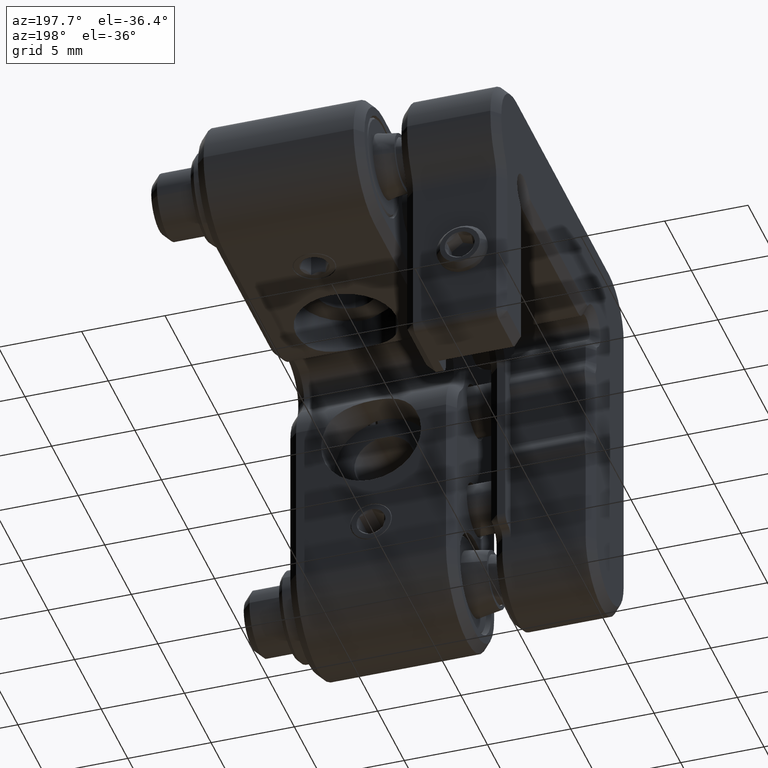
[diagram: clean part render]
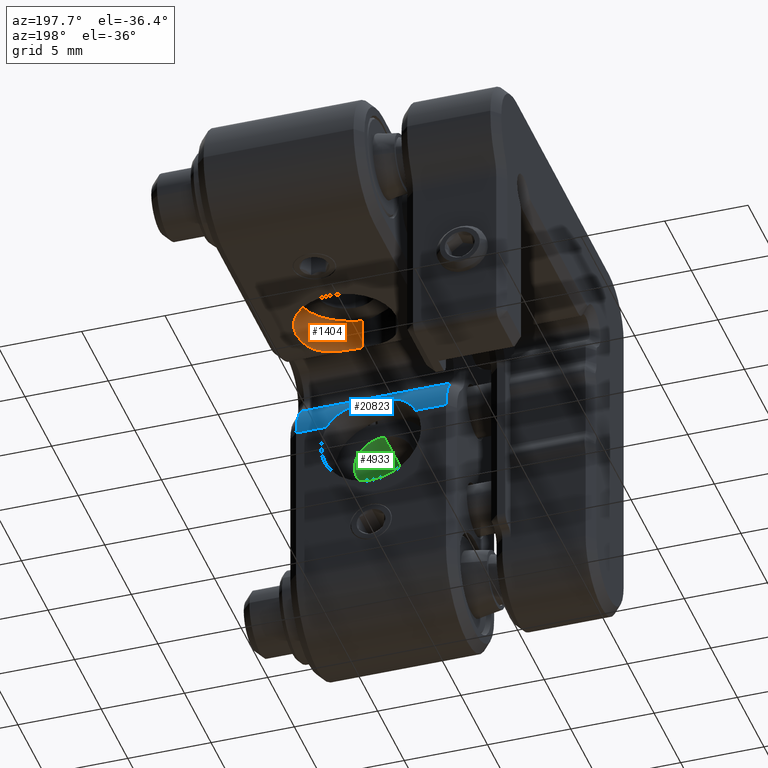
[diagram: same view with three faces highlighted in distinct colors, each labeled with its STEP entity id]
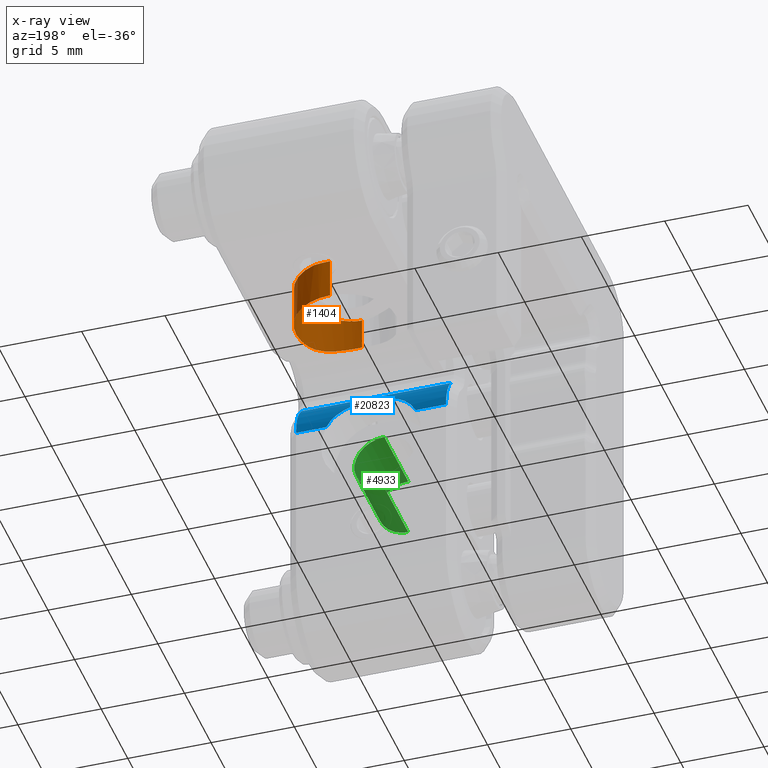
[diagram: x-ray of the same camera — body ghosted, the three highlighted faces saturated]
A machine part, auxiliary view with three faces highlighted in distinct colors.
The next image is the same camera in x-ray (body ghosted, the three faces saturated) — at least one of them is partly hidden behind the body in this view.
Their STEP definitions:

[orange] entity #1404 — the highlighted cylindrical surface (partial cylindrical patch) has radius 3 mm, axis along (0, -0, -1).
#354 = ORIENTED_EDGE ( 'NONE', *, *, #1770, .T. ) ;
#766 = EDGE_CURVE ( 'NONE', #17653, #2425, #14312, .T. ) ;
#1404 = ADVANCED_FACE ( 'NONE', ( #14945 ), #10564, .F. ) ;
#1424 = AXIS2_PLACEMENT_3D ( 'NONE', #17396, #5199, #20837 ) ;
#1491 = CARTESIAN_POINT ( 'NONE',  ( 23.19834766567550943, 15.68433294567332226, -4.167702913132226961 ) ) ;
#1685 = CARTESIAN_POINT ( 'NONE',  ( 25.52541430270649414, 11.35410196624969359, -6.599999999999992539 ) ) ;
#1770 = EDGE_CURVE ( 'NONE', #21615, #11526, #21378, .T. ) ;
#2425 = VERTEX_POINT ( 'NONE', #8527 ) ;
#2643 = AXIS2_PLACEMENT_3D ( 'NONE', #11363, #20138, #11217 ) ;
#3127 = VECTOR ( 'NONE', #16891, 1000.000000000000000 ) ;
#3158 = CARTESIAN_POINT ( 'NONE',  ( 23.40566070185218450, 9.740210155548686188, -6.130437276647445977 ) ) ;
#3238 = CARTESIAN_POINT ( 'NONE',  ( 24.30338635883742526, 10.07518519530831114, -6.314870306731538818 ) ) ;
#3323 = CARTESIAN_POINT ( 'NONE',  ( 24.85785111664835512, 10.47195811033481583, -6.468844195922780038 ) ) ;
#4176 = CARTESIAN_POINT ( 'NONE',  ( 22.84426557823278259, 15.70000000000000639, -4.172418519351677624 ) ) ;
#4603 = CARTESIAN_POINT ( 'NONE',  ( 22.84426557823278259, 9.700000000000009948, -6.599999999999992539 ) ) ;
#5053 = CARTESIAN_POINT ( 'NONE',  ( 24.95880461383409354, 10.56741312647783104, -6.496911676107401057 ) ) ;
#5199 = DIRECTION ( 'NONE',  ( 1.025309737829608030E-23, -6.938893903907227145E-17, -1.000000000000000000 ) ) ;
#5365 = CARTESIAN_POINT ( 'NONE',  ( 23.72156090817578900, 9.825658870591583494, -4.128287086629382152 ) ) ;
#5662 = CARTESIAN_POINT ( 'NONE',  ( 22.84426557823278259, 15.70000000000000639, -6.599999999999992539 ) ) ;
#5916 = ORIENTED_EDGE ( 'NONE', *, *, #20087, .T. ) ;
#6406 = VERTEX_POINT ( 'NONE', #5662 ) ;
#7136 = VECTOR ( 'NONE', #11103, 1000.000000000000000 ) ;
#7760 = VERTEX_POINT ( 'NONE', #16194 ) ;
#7829 = LINE ( 'NONE', #4603, #3127 ) ;
#8488 = ORIENTED_EDGE ( 'NONE', *, *, #10338, .F. ) ;
#8495 = CIRCLE ( 'NONE', #1424, 2.999999999999997335 ) ;
#8527 = CARTESIAN_POINT ( 'NONE',  ( 23.88791517445950774, 15.51261364575652557, -4.099999999999992539 ) ) ;
#8615 = CARTESIAN_POINT ( 'NONE',  ( 22.84426557823278259, 9.700000000000011724, -6.102787782703299690 ) ) ;
#10231 = DIRECTION ( 'NONE',  ( 0.0000000000000000000, 1.000000000000000000, 0.0000000000000000000 ) ) ;
#10319 = CARTESIAN_POINT ( 'NONE',  ( 23.02196391564263322, 15.70000000000000639, -4.172418519351677624 ) ) ;
#10338 = EDGE_CURVE ( 'NONE', #20961, #11526, #7829, .T. ) ;
#10564 = CYLINDRICAL_SURFACE ( 'NONE', #2643, 2.999999999999997335 ) ;
#11103 = DIRECTION ( 'NONE',  ( 1.025309737829608030E-23, -6.938893903907227145E-17, -1.000000000000000000 ) ) ;
#11217 = DIRECTION ( 'NONE',  ( 0.0000000000000000000, 1.000000000000000000, 0.0000000000000000000 ) ) ;
#11363 = CARTESIAN_POINT ( 'NONE',  ( 22.84426557823278259, 12.70000000000000817, -6.599999999999992539 ) ) ;
#11526 = VERTEX_POINT ( 'NONE', #8615 ) ;
#11541 = CARTESIAN_POINT ( 'NONE',  ( 22.84426557823278259, 9.700000000000011724, -4.172418519351664301 ) ) ;
#12011 = CARTESIAN_POINT ( 'NONE',  ( 25.39821608705971911, 11.10071179471760594, -6.599999999999994316 ) ) ;
#12126 = B_SPLINE_CURVE_WITH_KNOTS ( 'NONE', 3,
 ( #19441, #5365, #17633, #16105, #17847, #19599 ),
 .UNSPECIFIED., .F., .F.,
 ( 4, 2, 4 ),
 ( 0.0000000000000000000, 0.0005324011061973579284, 0.001064802212394715857 ),
 .UNSPECIFIED. ) ;
#12184 = ORIENTED_EDGE ( 'NONE', *, *, #13909, .T. ) ;
#12298 = CARTESIAN_POINT ( 'NONE',  ( 23.88791517445950774, 15.51261364575652557, -4.099999999999992539 ) ) ;
#12332 = ORIENTED_EDGE ( 'NONE', *, *, #20843, .F. ) ;
#12774 = CARTESIAN_POINT ( 'NONE',  ( 22.84426557823278259, 15.70000000000000639, -6.599999999999992539 ) ) ;
#13072 = ORIENTED_EDGE ( 'NONE', *, *, #766, .F. ) ;
#13723 = CARTESIAN_POINT ( 'NONE',  ( 24.18082403441644601, 10.01069955173783832, -6.283127091608005976 ) ) ;
#13909 = EDGE_CURVE ( 'NONE', #6406, #21615, #17894, .T. ) ;
#14312 = B_SPLINE_CURVE_WITH_KNOTS ( 'NONE', 3,
 ( #21046, #10319, #1491, #20898, #22706, #12298 ),
 .UNSPECIFIED., .F., .F.,
 ( 4, 2, 4 ),
 ( 0.001064802212394826662, 0.001597048669999269173, 0.002129295127603711684 ),
 .UNSPECIFIED. ) ;
#14945 = FACE_OUTER_BOUND ( 'NONE', #15472, .T. ) ;
#15112 = LINE ( 'NONE', #12774, #7136 ) ;
#15472 = EDGE_LOOP ( 'NONE', ( #8488, #12332, #16534, #13072, #5916, #12184, #354 ) ) ;
#15574 = CARTESIAN_POINT ( 'NONE',  ( 22.84426557823278259, 9.700000000000011724, -6.102787782703299690 ) ) ;
#15648 = CARTESIAN_POINT ( 'NONE',  ( 24.53604808808227133, 10.21875874798754147, -6.377974921793546415 ) ) ;
#16105 = CARTESIAN_POINT ( 'NONE',  ( 23.20198528137258620, 9.716132121908206187, -4.167551974685451910 ) ) ;
#16149 = AXIS2_PLACEMENT_3D ( 'NONE', #22621, #19110, #10231 ) ;
#16194 = CARTESIAN_POINT ( 'NONE',  ( 23.88791517445941182, 9.887386354243455244, -4.099999999999992539 ) ) ;
#16534 = ORIENTED_EDGE ( 'NONE', *, *, #22407, .F. ) ;
#16891 = DIRECTION ( 'NONE',  ( 1.025309737829608030E-23, -6.938893903907227145E-17, -1.000000000000000000 ) ) ;
#17090 = CARTESIAN_POINT ( 'NONE',  ( 24.64681725953763802, 10.29802064562491282, -6.409472734737891031 ) ) ;
#17396 = CARTESIAN_POINT ( 'NONE',  ( 22.84426557823278259, 12.70000000000000817, -4.099999999999992539 ) ) ;
#17633 = CARTESIAN_POINT ( 'NONE',  ( 23.55093664060619929, 9.779033223481226500, -4.145422947516525625 ) ) ;
#17653 = VERTEX_POINT ( 'NONE', #4176 ) ;
#17847 = CARTESIAN_POINT ( 'NONE',  ( 23.02201554735845335, 9.700000000000013500, -4.172418519351665189 ) ) ;
#17894 = CIRCLE ( 'NONE', #16149, 2.999999999999997335 ) ;
#18836 = CARTESIAN_POINT ( 'NONE',  ( 23.93044591068306559, 9.900189704066129082, -6.224888601619008810 ) ) ;
#19074 = CARTESIAN_POINT ( 'NONE',  ( 25.24018584638958274, 10.87342547553110883, -6.568645561603237759 ) ) ;
#19110 = DIRECTION ( 'NONE',  ( 1.025309737829608030E-23, -6.938893903907227145E-17, -1.000000000000000000 ) ) ;
#19441 = CARTESIAN_POINT ( 'NONE',  ( 23.88791517445941182, 9.887386354243455244, -4.099999999999992539 ) ) ;
#19599 = CARTESIAN_POINT ( 'NONE',  ( 22.84426557823278259, 9.700000000000011724, -4.172418519351664301 ) ) ;
#20087 = EDGE_CURVE ( 'NONE', #17653, #6406, #15112, .T. ) ;
#20138 = DIRECTION ( 'NONE',  ( 1.025309737829608030E-23, -6.938893903907227145E-17, -1.000000000000000000 ) ) ;
#20837 = DIRECTION ( 'NONE',  ( 0.0000000000000000000, 1.000000000000000000, 0.0000000000000000000 ) ) ;
#20843 = EDGE_CURVE ( 'NONE', #7760, #20961, #12126, .T. ) ;
#20898 = CARTESIAN_POINT ( 'NONE',  ( 23.54839776304053700, 15.62161173354654586, -4.145662300759834551 ) ) ;
#20929 = CARTESIAN_POINT ( 'NONE',  ( 23.12238965520617739, 9.700000000000013500, -6.102787782703300579 ) ) ;
#20961 = VERTEX_POINT ( 'NONE', #11541 ) ;
#21046 = CARTESIAN_POINT ( 'NONE',  ( 22.84426557823278259, 15.70000000000000639, -4.172418519351677624 ) ) ;
#21378 = B_SPLINE_CURVE_WITH_KNOTS ( 'NONE', 3,
 ( #22583, #12011, #19074, #5053, #3323, #17090, #15648, #3238, #13723, #18836, #22434, #3158, #20929, #15574 ),
 .UNSPECIFIED., .F., .F.,
 ( 4, 2, 2, 2, 2, 2, 4 ),
 ( 1.734723475976807094E-18, 0.0008356779767375709794, 0.001253516965106356035, 0.001671355953475140875, 0.002089194941843926148, 0.002507033930212711204, 0.003342711906950270474 ),
 .UNSPECIFIED. ) ;
#21615 = VERTEX_POINT ( 'NONE', #1685 ) ;
#22407 = EDGE_CURVE ( 'NONE', #2425, #7760, #8495, .T. ) ;
#22434 = CARTESIAN_POINT ( 'NONE',  ( 23.80195875048063670, 9.853650778652593090, -6.198189009783949821 ) ) ;
#22583 = CARTESIAN_POINT ( 'NONE',  ( 25.52541430270649414, 11.35410196624969359, -6.599999999999992539 ) ) ;
#22621 = CARTESIAN_POINT ( 'NONE',  ( 22.84426557823278259, 12.70000000000000817, -6.599999999999992539 ) ) ;
#22706 = CARTESIAN_POINT ( 'NONE',  ( 23.72169007157968323, 15.57429320198175304, -4.128265123523336300 ) ) ;

[blue] entity #20823 — the highlighted cylindrical surface (partial cylindrical patch) has radius 3 mm, axis along (1, 0, 0).
#265 = CARTESIAN_POINT ( 'NONE',  ( 17.84426557823278614, 5.000000000000005329, -9.954101966249675471 ) ) ;
#576 = CARTESIAN_POINT ( 'NONE',  ( 17.84426557823278614, 7.000000000000006217, -7.718033988749886554 ) ) ;
#628 = CARTESIAN_POINT ( 'NONE',  ( 22.28287045461338067, 7.530437276647461431, -8.340210155548673399 ) ) ;
#703 = CARTESIAN_POINT ( 'NONE',  ( 25.24034710532024661, 7.968661273656212352, -9.473756517615502304 ) ) ;
#713 = CARTESIAN_POINT ( 'NONE',  ( 18.34426557823279325, 7.000000000000006217, -7.718033988749886554 ) ) ;
#778 = CARTESIAN_POINT ( 'NONE',  ( 25.39819355317306204, 8.000000000000007105, -9.700666905208915836 ) ) ;
#893 = EDGE_CURVE ( 'NONE', #6594, #22401, #1881, .T. ) ;
#924 = CARTESIAN_POINT ( 'NONE',  ( 24.64766716826851578, 7.809713623517350989, -8.898655613508925200 ) ) ;
#1482 = DIRECTION ( 'NONE',  ( 1.000000000000000000, 8.833440731914468542E-23, 5.569080924222307690E-23 ) ) ;
#1484 = VECTOR ( 'NONE', #13002, 1000.000000000000000 ) ;
#1534 = AXIS2_PLACEMENT_3D ( 'NONE', #265, #9183, #17770 ) ;
#1678 = CARTESIAN_POINT ( 'NONE',  ( 18.34426557823279325, 8.000000000000007105, -9.954101966249677247 ) ) ;
#1820 = CARTESIAN_POINT ( 'NONE',  ( 27.34426557823277193, 7.000000000000006217, -7.718033988749886554 ) ) ;
#1881 = B_SPLINE_CURVE_WITH_KNOTS ( 'NONE', 3,
 ( #19576, #17978, #21379, #14235, #3993, #9310, #21679, #13054, #9607, #12910, #2555, #628, #19880, #11162 ),
 .UNSPECIFIED., .F., .F.,
 ( 4, 2, 2, 2, 2, 2, 4 ),
 ( 0.0000000000000000000, 0.0008356779767375674016, 0.001253516965106352566, 0.001671355953475138489, 0.002089194941843924413, 0.002507033930212710336, 0.003342711906950271775 ),
 .UNSPECIFIED. ) ;
#1975 = EDGE_CURVE ( 'NONE', #5386, #20300, #20892, .T. ) ;
#2555 = CARTESIAN_POINT ( 'NONE',  ( 21.88657240598493203, 7.598189009783967940, -8.453650778652582076 ) ) ;
#3046 = CARTESIAN_POINT ( 'NONE',  ( 27.34426557823277193, 8.000000000000007105, -9.954101966249677247 ) ) ;
#3146 = CARTESIAN_POINT ( 'NONE',  ( 22.84426557823278259, 7.502787782703315145, -8.299999999999997158 ) ) ;
#3153 = EDGE_CURVE ( 'NONE', #15833, #20300, #12868, .T. ) ;
#3993 = CARTESIAN_POINT ( 'NONE',  ( 20.83068003981721361, 7.868844195922793716, -9.071958110334799485 ) ) ;
#4158 = CARTESIAN_POINT ( 'NONE',  ( 24.95988264307449711, 7.897199124087884492, -9.168508170247667621 ) ) ;
#4265 = CARTESIAN_POINT ( 'NONE',  ( 25.52541430270649414, 8.000000000000003553, -9.954101966249677247 ) ) ;
#4918 = EDGE_CURVE ( 'NONE', #10937, #11223, #10771, .T. ) ;
#5011 = CARTESIAN_POINT ( 'NONE',  ( 18.34426557823279325, 5.000000000000005329, -9.954101966249675471 ) ) ;
#5016 = ORIENTED_EDGE ( 'NONE', *, *, #3153, .F. ) ;
#5386 = VERTEX_POINT ( 'NONE', #1820 ) ;
#5588 = DIRECTION ( 'NONE',  ( -1.000000000000000000, -8.833440731914468542E-23, -5.569080924222307690E-23 ) ) ;
#6452 = CARTESIAN_POINT ( 'NONE',  ( 20.16311685375907103, 8.000000000000007105, -9.954101966249677247 ) ) ;
#6594 = VERTEX_POINT ( 'NONE', #6452 ) ;
#6638 = CARTESIAN_POINT ( 'NONE',  ( 17.84426557823278614, 8.000000000000007105, -9.954101966249677247 ) ) ;
#8386 = ORIENTED_EDGE ( 'NONE', *, *, #22292, .F. ) ;
#8823 = ORIENTED_EDGE ( 'NONE', *, *, #4918, .T. ) ;
#9183 = DIRECTION ( 'NONE',  ( 1.000000000000000000, 8.833440731914468542E-23, 5.569080924222307690E-23 ) ) ;
#9310 = CARTESIAN_POINT ( 'NONE',  ( 21.04171389692793070, 7.809472734737903821, -8.898020645624889369 ) ) ;
#9607 = CARTESIAN_POINT ( 'NONE',  ( 21.50770712204912272, 7.683127091608020542, -8.610699551737825530 ) ) ;
#9615 = CARTESIAN_POINT ( 'NONE',  ( 23.53660110997265775, 7.552833778692131794, -8.377714187975152882 ) ) ;
#9694 = CARTESIAN_POINT ( 'NONE',  ( 24.18904422595183235, 7.683835329827096494, -8.604460090163549069 ) ) ;
#9763 = CARTESIAN_POINT ( 'NONE',  ( 22.98320539692198849, 7.502787782703315145, -8.299999999999998934 ) ) ;
#10208 = EDGE_CURVE ( 'NONE', #22401, #15833, #13125, .T. ) ;
#10771 = CIRCLE ( 'NONE', #21622, 3.000000000000000888 ) ;
#10863 = ORIENTED_EDGE ( 'NONE', *, *, #10208, .F. ) ;
#10937 = VERTEX_POINT ( 'NONE', #1678 ) ;
#10944 = ORIENTED_EDGE ( 'NONE', *, *, #893, .F. ) ;
#11162 = CARTESIAN_POINT ( 'NONE',  ( 22.84426557823278259, 7.502787782703315145, -8.299999999999997158 ) ) ;
#11223 = VERTEX_POINT ( 'NONE', #713 ) ;
#11228 = EDGE_CURVE ( 'NONE', #5386, #11223, #19660, .T. ) ;
#12868 = LINE ( 'NONE', #21365, #15332 ) ;
#12910 = CARTESIAN_POINT ( 'NONE',  ( 21.75808524578251024, 7.624888601619023376, -8.500189704066119845 ) ) ;
#13002 = DIRECTION ( 'NONE',  ( -1.000000000000000000, -8.833440731914468542E-23, -5.569080924222307690E-23 ) ) ;
#13054 = CARTESIAN_POINT ( 'NONE',  ( 21.38514479762814346, 7.714870306731553384, -8.675185195308298347 ) ) ;
#13125 = B_SPLINE_CURVE_WITH_KNOTS ( 'NONE', 3,
 ( #18498, #9763, #14767, #16738, #9615, #14704, #9694, #14979, #924, #18284, #4158, #703, #778, #16444 ),
 .UNSPECIFIED., .F., .F.,
 ( 4, 2, 2, 2, 2, 2, 4 ),
 ( 0.003342711906950271775, 0.003760183662125160965, 0.004177655417300050154, 0.005012598927649838075, 0.005430070682824727699, 0.005847542437999619057, 0.006682485948349393100 ),
 .UNSPECIFIED. ) ;
#14235 = CARTESIAN_POINT ( 'NONE',  ( 20.72972654263146453, 7.896911676107419176, -9.167413126477821805 ) ) ;
#14704 = CARTESIAN_POINT ( 'NONE',  ( 23.93503901813934576, 7.620919223145220300, -8.491700741466578606 ) ) ;
#14767 = CARTESIAN_POINT ( 'NONE',  ( 23.12189491357263194, 7.509215220856343187, -8.309604790142465447 ) ) ;
#14979 = CARTESIAN_POINT ( 'NONE',  ( 24.53703761060814870, 7.778254439305885448, -8.819452862647370495 ) ) ;
#15332 = VECTOR ( 'NONE', #19484, 1000.000000000000000 ) ;
#15833 = VERTEX_POINT ( 'NONE', #4265 ) ;
#16285 = ORIENTED_EDGE ( 'NONE', *, *, #1975, .T. ) ;
#16444 = CARTESIAN_POINT ( 'NONE',  ( 25.52541430270649414, 8.000000000000003553, -9.954101966249677247 ) ) ;
#16677 = AXIS2_PLACEMENT_3D ( 'NONE', #19590, #5588, #17696 ) ;
#16738 = CARTESIAN_POINT ( 'NONE',  ( 23.39877524608609249, 7.534203814637252528, -8.348380006295300859 ) ) ;
#17278 = DIRECTION ( 'NONE',  ( 0.0000000000000000000, 0.0000000000000000000, 1.000000000000000000 ) ) ;
#17636 = LINE ( 'NONE', #6638, #21775 ) ;
#17696 = DIRECTION ( 'NONE',  ( 0.0000000000000000000, 0.0000000000000000000, 1.000000000000000000 ) ) ;
#17770 = DIRECTION ( 'NONE',  ( 0.0000000000000000000, 0.0000000000000000000, 1.000000000000000000 ) ) ;
#17978 = CARTESIAN_POINT ( 'NONE',  ( 20.29031506940585317, 8.000000000000005329, -9.700711794717589598 ) ) ;
#18284 = CARTESIAN_POINT ( 'NONE',  ( 24.85871977745601669, 7.869086788444019653, -9.072740150609391208 ) ) ;
#18498 = CARTESIAN_POINT ( 'NONE',  ( 22.84426557823278259, 7.502787782703315145, -8.299999999999997158 ) ) ;
#18600 = DIRECTION ( 'NONE',  ( 1.000000000000000000, 8.833440731914468542E-23, 5.569080924222307690E-23 ) ) ;
#19484 = DIRECTION ( 'NONE',  ( 1.000000000000000000, 8.833440731914468542E-23, 5.569080924222307690E-23 ) ) ;
#19576 = CARTESIAN_POINT ( 'NONE',  ( 20.16311685375907103, 8.000000000000007105, -9.954101966249677247 ) ) ;
#19590 = CARTESIAN_POINT ( 'NONE',  ( 27.34426557823277193, 5.000000000000005329, -9.954101966249675471 ) ) ;
#19660 = LINE ( 'NONE', #576, #1484 ) ;
#19880 = CARTESIAN_POINT ( 'NONE',  ( 22.56614150125938778, 7.502787782703315145, -8.299999999999998934 ) ) ;
#19964 = CYLINDRICAL_SURFACE ( 'NONE', #1534, 3.000000000000000888 ) ;
#20300 = VERTEX_POINT ( 'NONE', #3046 ) ;
#20809 = FACE_OUTER_BOUND ( 'NONE', #21546, .T. ) ;
#20823 = ADVANCED_FACE ( 'NONE', ( #20809 ), #19964, .T. ) ;
#20872 = ORIENTED_EDGE ( 'NONE', *, *, #11228, .F. ) ;
#20892 = CIRCLE ( 'NONE', #16677, 3.000000000000000888 ) ;
#21365 = CARTESIAN_POINT ( 'NONE',  ( 17.84426557823278614, 8.000000000000007105, -9.954101966249677247 ) ) ;
#21379 = CARTESIAN_POINT ( 'NONE',  ( 20.44834531007598244, 7.968645561603251437, -9.473425475531096041 ) ) ;
#21546 = EDGE_LOOP ( 'NONE', ( #10944, #8386, #8823, #20872, #16285, #5016, #10863 ) ) ;
#21622 = AXIS2_PLACEMENT_3D ( 'NONE', #5011, #1482, #17278 ) ;
#21679 = CARTESIAN_POINT ( 'NONE',  ( 21.15248306838329739, 7.777974921793560092, -8.818758747987526903 ) ) ;
#21775 = VECTOR ( 'NONE', #18600, 1000.000000000000000 ) ;
#22292 = EDGE_CURVE ( 'NONE', #10937, #6594, #17636, .T. ) ;
#22401 = VERTEX_POINT ( 'NONE', #3146 ) ;

[green] entity #4933 — the highlighted cylindrical surface (edge-blend (fillet) strip) has radius 1.8 mm, axis along (-0, 1, -0).
#177 = VERTEX_POINT ( 'NONE', #15283 ) ;
#854 = CARTESIAN_POINT ( 'NONE',  ( 22.84426557823278259, 5.500000000000005329, -9.499999999999994671 ) ) ;
#2669 = ORIENTED_EDGE ( 'NONE', *, *, #7468, .F. ) ;
#4696 = CARTESIAN_POINT ( 'NONE',  ( 22.84426557823278259, 1.000000000000003109, -9.499999999999992895 ) ) ;
#4933 = ADVANCED_FACE ( 'NONE', ( #14064 ), #17344, .F. ) ;
#5164 = ORIENTED_EDGE ( 'NONE', *, *, #11472, .T. ) ;
#6154 = EDGE_CURVE ( 'NONE', #11449, #16751, #11011, .T. ) ;
#6779 = CARTESIAN_POINT ( 'NONE',  ( 22.84426557823278259, 1.000000000000002665, -11.29999999999999183 ) ) ;
#7194 = CIRCLE ( 'NONE', #12286, 1.799999999999999600 ) ;
#7468 = EDGE_CURVE ( 'NONE', #16751, #14620, #15869, .T. ) ;
#7630 = AXIS2_PLACEMENT_3D ( 'NONE', #6779, #13794, #20828 ) ;
#8990 = VECTOR ( 'NONE', #11760, 1000.000000000000000 ) ;
#9221 = DIRECTION ( 'NONE',  ( -1.378096284421531633E-22, 1.000000000000000000, -2.914335439641035919E-16 ) ) ;
#10839 = CARTESIAN_POINT ( 'NONE',  ( 22.84426557823278259, 5.500000000000004441, -13.09999999999999432 ) ) ;
#11011 = CIRCLE ( 'NONE', #7630, 1.799999999999999600 ) ;
#11139 = DIRECTION ( 'NONE',  ( 0.0000000000000000000, 4.818676322157798361E-16, 1.000000000000000000 ) ) ;
#11449 = VERTEX_POINT ( 'NONE', #4696 ) ;
#11472 = EDGE_CURVE ( 'NONE', #11449, #177, #22736, .T. ) ;
#11688 = VECTOR ( 'NONE', #13222, 1000.000000000000000 ) ;
#11760 = DIRECTION ( 'NONE',  ( -1.378096284421531633E-22, 1.000000000000000000, -2.914335439641035919E-16 ) ) ;
#12286 = AXIS2_PLACEMENT_3D ( 'NONE', #21653, #18182, #11139 ) ;
#12659 = EDGE_LOOP ( 'NONE', ( #2669, #13057, #5164, #16467 ) ) ;
#13013 = EDGE_CURVE ( 'NONE', #177, #14620, #7194, .T. ) ;
#13057 = ORIENTED_EDGE ( 'NONE', *, *, #6154, .F. ) ;
#13222 = DIRECTION ( 'NONE',  ( -1.378096284421531633E-22, 1.000000000000000000, -2.914335439641035919E-16 ) ) ;
#13794 = DIRECTION ( 'NONE',  ( -1.378096284421531633E-22, 1.000000000000000000, -2.914335439641035919E-16 ) ) ;
#14064 = FACE_OUTER_BOUND ( 'NONE', #12659, .T. ) ;
#14222 = CARTESIAN_POINT ( 'NONE',  ( 22.84426557823278259, 5.500000000000005329, -11.29999999999999361 ) ) ;
#14620 = VERTEX_POINT ( 'NONE', #18856 ) ;
#15283 = CARTESIAN_POINT ( 'NONE',  ( 22.84426557823278259, 5.500000000000005329, -9.499999999999994671 ) ) ;
#15869 = LINE ( 'NONE', #10839, #8990 ) ;
#16467 = ORIENTED_EDGE ( 'NONE', *, *, #13013, .T. ) ;
#16751 = VERTEX_POINT ( 'NONE', #21202 ) ;
#17344 = CYLINDRICAL_SURFACE ( 'NONE', #19234, 1.799999999999999600 ) ;
#18182 = DIRECTION ( 'NONE',  ( -1.378096284421531633E-22, 1.000000000000000000, -2.914335439641035919E-16 ) ) ;
#18856 = CARTESIAN_POINT ( 'NONE',  ( 22.84426557823278259, 5.500000000000004441, -13.09999999999999432 ) ) ;
#19234 = AXIS2_PLACEMENT_3D ( 'NONE', #14222, #9221, #19567 ) ;
#19567 = DIRECTION ( 'NONE',  ( 0.0000000000000000000, 4.818676322157798361E-16, 1.000000000000000000 ) ) ;
#20828 = DIRECTION ( 'NONE',  ( 0.0000000000000000000, -2.409338161078899180E-16, -1.000000000000000000 ) ) ;
#21202 = CARTESIAN_POINT ( 'NONE',  ( 22.84426557823278259, 1.000000000000002220, -13.09999999999999254 ) ) ;
#21653 = CARTESIAN_POINT ( 'NONE',  ( 22.84426557823278259, 5.500000000000005329, -11.29999999999999361 ) ) ;
#22736 = LINE ( 'NONE', #854, #11688 ) ;